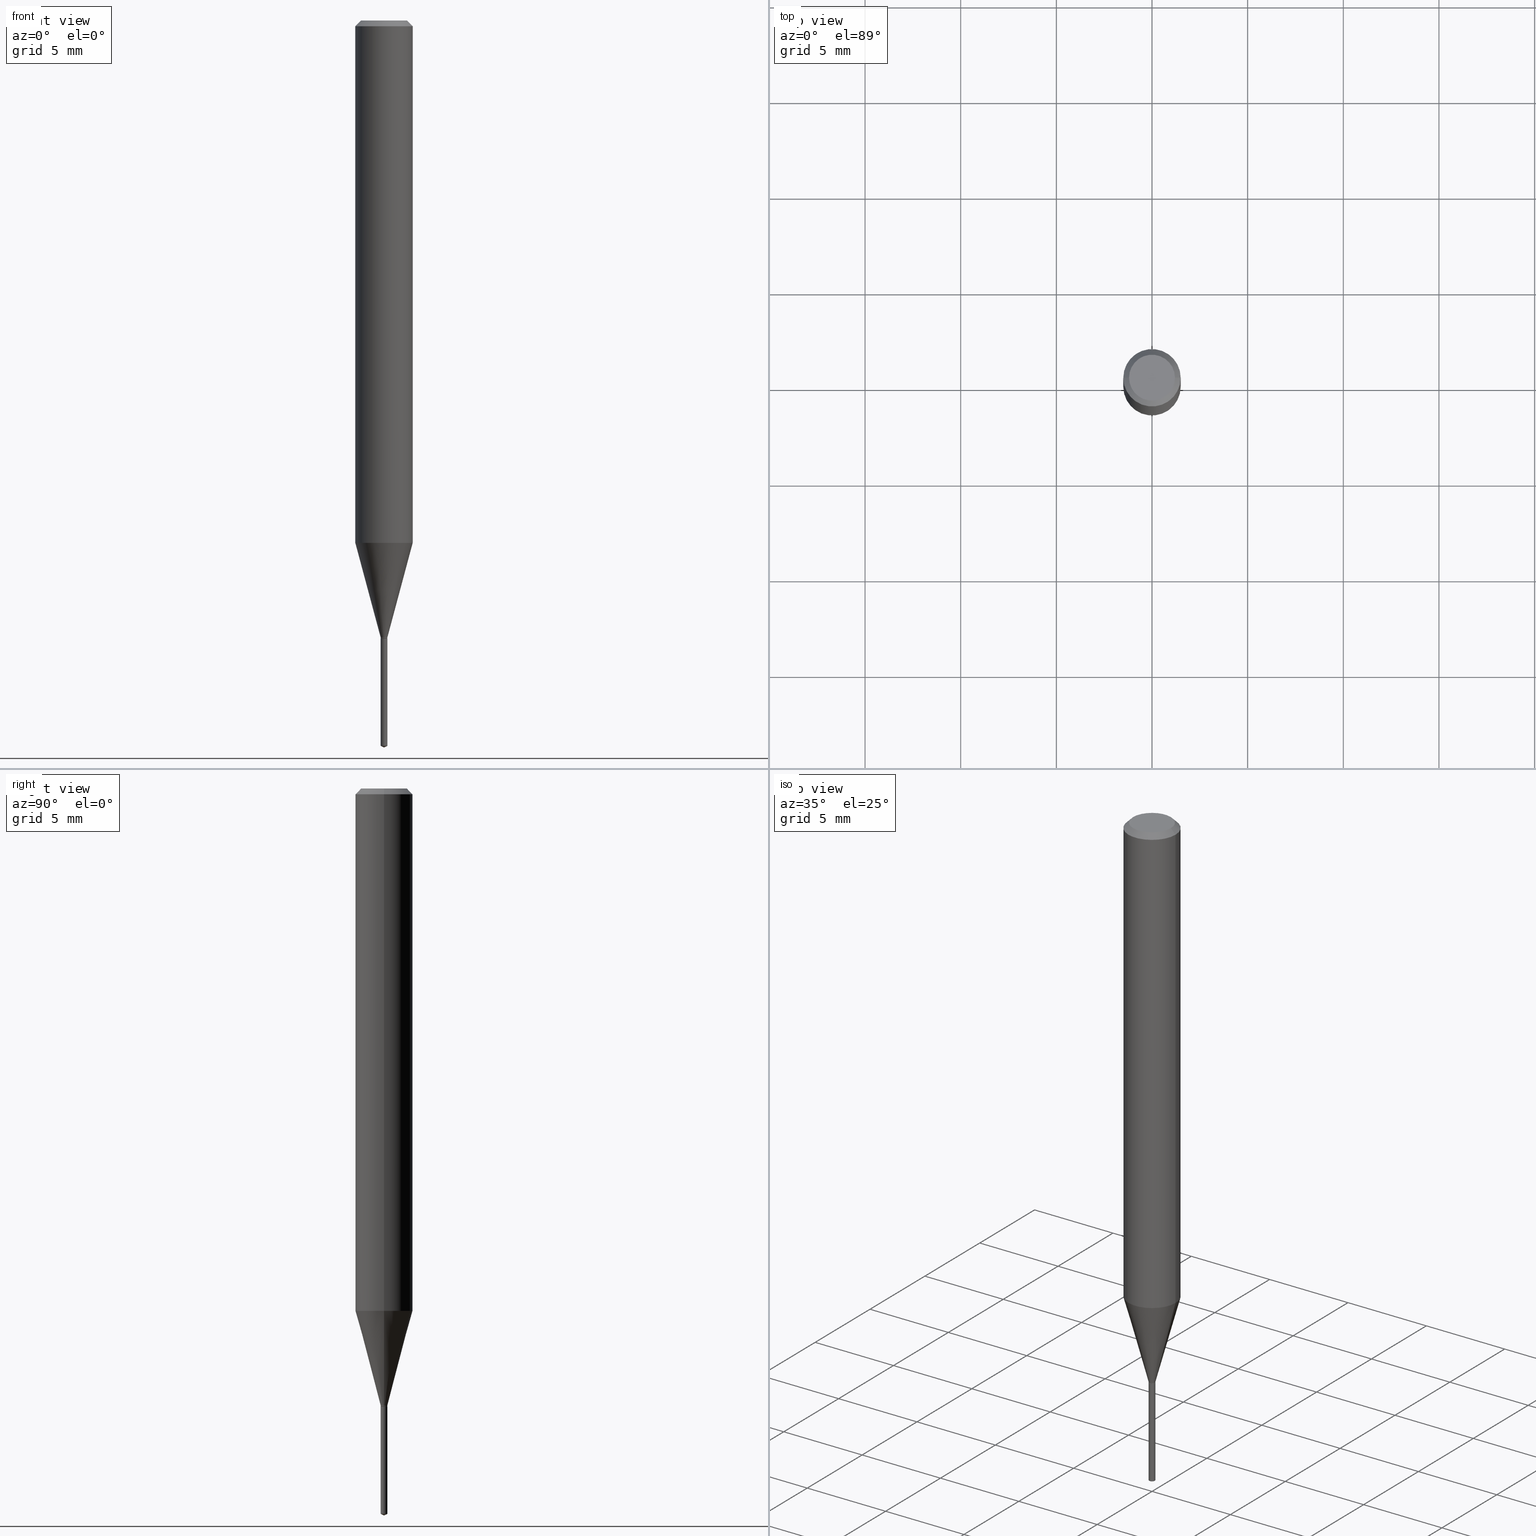
[diagram: canonical four-view strip — front | top / right | iso, engineering-drawing reading convention]
A machine part, canonical four-view strip (front | top / right | iso — engineering-drawing reading convention). The complete STEP part file that produces these views, byte-faithful:
ISO-10303-21;
HEADER;
FILE_DESCRIPTION (( 'STEP AP203' ),
    '1' );
FILE_NAME ('08076.STEP',
    '2024-04-24T10:43:33',
    ( '' ),
    ( '' ),
    'SwSTEP 2.0',
    'SolidWorks 2023',
    '' );
FILE_SCHEMA (( 'CONFIG_CONTROL_DESIGN' ));
ENDSEC;

DATA;
#1 = AXIS2_PLACEMENT_3D ( 'NONE', #345, #281, #490 ) ;
#2 = LINE ( 'NONE', #309, #386 ) ;
#3 = ORIENTED_EDGE ( 'NONE', *, *, #21, .T. ) ;
#4 = AXIS2_PLACEMENT_3D ( 'NONE', #462, #328, #179 ) ;
#5 = CARTESIAN_POINT ( 'NONE',  ( 0.006899999999999999883, -4.480967150271292854E-15, -1.269600000000000062 ) ) ;
#6 = ORIENTED_EDGE ( 'NONE', *, *, #144, .F. ) ;
#7 = CARTESIAN_POINT ( 'NONE',  ( 3.104767196332649259E-29, -4.432784707795257778E-15, -1.269600000000000062 ) ) ;
#8 = DIRECTION ( 'NONE',  ( -2.445468806185136597E-29, 3.491481338843145583E-15, 1.000000000000000000 ) ) ;
#9 = EDGE_CURVE ( 'NONE', #33, #138, #116, .T. ) ;
#10 = CARTESIAN_POINT ( 'NONE',  ( 3.109902680825638129E-29, -4.440116818606828093E-15, -1.271700000000000053 ) ) ;
#11 = ORIENTED_EDGE ( 'NONE', *, *, #83, .F. ) ;
#12 = AXIS2_PLACEMENT_3D ( 'NONE', #101, #399, #145 ) ;
#13 = LOCAL_TIME ( 6, 43, 33.00000000000000000, #339 ) ;
#14 = LINE ( 'NONE', #316, #51 ) ;
#15 = FACE_OUTER_BOUND ( 'NONE', #111, .T. ) ;
#16 = LINE ( 'NONE', #252, #294 ) ;
#17 = ADVANCED_FACE ( 'NONE', ( #324 ), #465, .F. ) ;
#18 = ORIENTED_EDGE ( 'NONE', *, *, #427, .T. ) ;
#19 = DIRECTION ( 'NONE',  ( 1.000000000000000000, -6.982962677686264344E-15, 0.000000000000000000 ) ) ;
#20 = APPROVAL_PERSON_ORGANIZATION ( #331, #181, #191 ) ;
#21 = EDGE_CURVE ( 'NONE', #178, #351, #182, .T. ) ;
#22 = CALENDAR_DATE ( 2024, 24, 4 ) ;
#23 = DIRECTION ( 'NONE',  ( 1.000000000000000000, -6.982962677686234367E-15, 0.000000000000000000 ) ) ;
#24 = PERSON_AND_ORGANIZATION ( #65, #372 ) ;
#25 = DIRECTION ( 'NONE',  ( -0.7071067811866199593, 7.493145998870616062E-15, 0.7071067811864750752 ) ) ;
#26 = AXIS2_PLACEMENT_3D ( 'NONE', #291, #463, #435 ) ;
#27 = AXIS2_PLACEMENT_3D ( 'NONE', #263, #358, #404 ) ;
#28 = ORIENTED_EDGE ( 'NONE', *, *, #66, .F. ) ;
#29 =( NAMED_UNIT ( * ) SI_UNIT ( $, .STERADIAN. ) SOLID_ANGLE_UNIT ( ) );
#30 = CC_DESIGN_PERSON_AND_ORGANIZATION_ASSIGNMENT ( #296, #336, ( #406 ) ) ;
#31 = EDGE_CURVE ( 'NONE', #312, #271, #158, .T. ) ;
#32 = COORDINATED_UNIVERSAL_TIME_OFFSET ( 5, 0, .BEHIND. ) ;
#33 = VERTEX_POINT ( 'NONE', #180 ) ;
#34 = CARTESIAN_POINT ( 'NONE',  ( -0.006899999999999999883, -4.386550444098885937E-15, -1.271200000000000108 ) ) ;
#35 = ORIENTED_EDGE ( 'NONE', *, *, #242, .F. ) ;
#36 = CIRCLE ( 'NONE', #205, 0.05904999999999999832 ) ;
#37 = APPROVAL ( #251, 'UNSPECIFIED' ) ;
#38 = ADVANCED_FACE ( 'NONE', ( #15 ), #62, .T. ) ;
#39 = DIRECTION ( 'NONE',  ( 0.2588190451025213501, 1.565188264969621968E-15, 0.9659258262890682012 ) ) ;
#40 = DIRECTION ( 'NONE',  ( 6.982962677686265922E-15, 1.000000000000000000, -3.491506729089142552E-15 ) ) ;
#41 = DIRECTION ( 'NONE',  ( -2.445468806185136597E-29, 3.491481338843145583E-15, 1.000000000000000000 ) ) ;
#42 = ORIENTED_EDGE ( 'NONE', *, *, #433, .T. ) ;
#43 = CARTESIAN_POINT ( 'NONE',  ( 3.650793607645767893E-29, -5.212376925963141053E-15, -1.492882477158730348 ) ) ;
#44 = EDGE_CURVE ( 'NONE', #168, #351, #393, .T. ) ;
#45 = ORIENTED_EDGE ( 'NONE', *, *, #321, .F. ) ;
#46 = CARTESIAN_POINT ( 'NONE',  ( 8.265746106709734507E-48, -1.180129479067563789E-33, -3.380025165646692144E-19 ) ) ;
#47 = DIRECTION ( 'NONE',  ( 1.000000000000000000, -6.982962677686303787E-15, 0.000000000000000000 ) ) ;
#48 = DIRECTION ( 'NONE',  ( -1.000000000000000000, 6.982962677686266711E-15, 0.000000000000000000 ) ) ;
#49 = CARTESIAN_POINT ( 'NONE',  ( 2.888098660104663766E-31, -4.123439461173779647E-17, -0.01181000000000007044 ) ) ;
#50 = VECTOR ( 'NONE', #39, 39.37007874015747433 ) ;
#51 = VECTOR ( 'NONE', #177, 39.37007874015748143 ) ;
#52 = CC_DESIGN_PERSON_AND_ORGANIZATION_ASSIGNMENT ( #367, #485, ( #160 ) ) ;
#53 = EDGE_CURVE ( 'NONE', #398, #156, #451, .T. ) ;
#54 = CARTESIAN_POINT ( 'NONE',  ( -0.05905000000000013710, -3.333674605453837154E-15, -1.074973550385283083 ) ) ;
#55 = ORIENTED_EDGE ( 'NONE', *, *, #144, .T. ) ;
#56 = DIRECTION ( 'NONE',  ( -2.445451076271118643E-29, 3.491506729089142552E-15, 1.000000000000000000 ) ) ;
#57 = DIRECTION ( 'NONE',  ( -2.445451076271118923E-29, 3.491506729089142946E-15, 1.000000000000000000 ) ) ;
#58 = ORIENTED_EDGE ( 'NONE', *, *, #384, .F. ) ;
#59 = DIRECTION ( 'NONE',  ( -2.445468806185136597E-29, 3.491481338843145583E-15, 1.000000000000000000 ) ) ;
#60 = APPLICATION_CONTEXT ( 'configuration controlled 3d designs of mechanical parts and assemblies' ) ;
#61 = DATE_AND_TIME ( #69, #247 ) ;
#62 = CONICAL_SURFACE ( 'NONE', #132, 84.42940631927420725, 1.134464013796315340 ) ;
#63 = PRODUCT_DEFINITION_FORMATION_WITH_SPECIFIED_SOURCE ( 'ANY', '', #361, .NOT_KNOWN. ) ;
#64 = CARTESIAN_POINT ( 'NONE',  ( 0.04724000000000000421, -3.852183633974369345E-16, -3.380025165621689721E-19 ) ) ;
#65 = PERSON ( 'UNSPECIFIED', 'UNSPECIFIED', 'UNSPECIFIED', ('UNSPECIFIED'), ('UNSPECIFIED'), ('UNSPECIFIED') ) ;
#66 = EDGE_CURVE ( 'NONE', #312, #297, #173, .T. ) ;
#67 =( CONVERSION_BASED_UNIT ( 'INCH', #415 ) LENGTH_UNIT ( ) NAMED_UNIT ( #226 ) );
#68 = LINE ( 'NONE', #236, #125 ) ;
#69 = CALENDAR_DATE ( 2024, 24, 4 ) ;
#70 = VERTEX_POINT ( 'NONE', #461 ) ;
#71 = CC_DESIGN_PERSON_AND_ORGANIZATION_ASSIGNMENT ( #24, #148, ( #63 ) ) ;
#72 = AXIS2_PLACEMENT_3D ( 'NONE', #400, #57, #255 ) ;
#73 = EDGE_CURVE ( 'NONE', #156, #398, #99, .T. ) ;
#74 = ORIENTED_EDGE ( 'NONE', *, *, #306, .F. ) ;
#75 = FACE_OUTER_BOUND ( 'NONE', #444, .T. ) ;
#76 = ORIENTED_EDGE ( 'NONE', *, *, #31, .T. ) ;
#77 = CARTESIAN_POINT ( 'NONE',  ( 0.000000000000000000, 0.000000000000000000, 0.000000000000000000 ) ) ;
#78 = EDGE_CURVE ( 'NONE', #297, #245, #405, .T. ) ;
#79 = MECHANICAL_CONTEXT ( 'NONE', #60, 'mechanical' ) ;
#80 = DIRECTION ( 'NONE',  ( -2.445468806185136597E-29, 3.491481338843145583E-15, 1.000000000000000000 ) ) ;
#81 = AXIS2_PLACEMENT_3D ( 'NONE', #107, #369, #295 ) ;
#82 = DIRECTION ( 'NONE',  ( 1.000000000000000000, -6.982962677686266711E-15, 4.876176775795936353E-29 ) ) ;
#83 = EDGE_CURVE ( 'NONE', #33, #166, #349, .T. ) ;
#84 = FACE_OUTER_BOUND ( 'NONE', #192, .T. ) ;
#85 = ORIENTED_EDGE ( 'NONE', *, *, #335, .F. ) ;
#86 = CARTESIAN_POINT ( 'NONE',  ( 3.109902680825638129E-29, -4.440116818606828093E-15, -1.271700000000000053 ) ) ;
#87 = CLOSED_SHELL ( 'NONE', ( #467, #264, #38, #209, #135 ) ) ;
#88 = ORIENTED_EDGE ( 'NONE', *, *, #409, .T. ) ;
#89 = LOCAL_TIME ( 6, 43, 33.00000000000000000, #232 ) ;
#90 = APPLICATION_CONTEXT ( 'configuration controlled 3d designs of mechanical parts and assemblies' ) ;
#91 = LINE ( 'NONE', #5, #50 ) ;
#92 = ORIENTED_EDGE ( 'NONE', *, *, #21, .F. ) ;
#93 = PERSON_AND_ORGANIZATION ( #65, #372 ) ;
#94 = FACE_OUTER_BOUND ( 'NONE', #140, .T. ) ;
#95 = DIRECTION ( 'NONE',  ( -6.982962677686266711E-15, -1.000000000000000000, 3.520397390770459392E-15 ) ) ;
#96 = EDGE_CURVE ( 'NONE', #70, #285, #213, .T. ) ;
#97 = CYLINDRICAL_SURFACE ( 'NONE', #12, 0.05905000000000006771 ) ;
#98 = DIRECTION ( 'NONE',  ( -2.445468806185136597E-29, 3.491481338843145583E-15, 1.000000000000000000 ) ) ;
#99 = CIRCLE ( 'NONE', #147, 0.006899999999999999883 ) ;
#100 = ORIENTED_EDGE ( 'NONE', *, *, #171, .F. ) ;
#101 = CARTESIAN_POINT ( 'NONE',  ( 0.000000000000000000, 0.000000000000000000, 0.000000000000000000 ) ) ;
#102 = ORIENTED_EDGE ( 'NONE', *, *, #242, .T. ) ;
#103 = CARTESIAN_POINT ( 'NONE',  ( 0.05905000000000013710, -4.165594037037551961E-15, -1.074973550385283083 ) ) ;
#104 = PLANE ( 'NONE',  #4 ) ;
#105 = SHAPE_DEFINITION_REPRESENTATION ( #256, #360 ) ;
#106 = CONICAL_SURFACE ( 'NONE', #174, 84.42940631927420725, 1.134464013796315340 ) ;
#107 = CARTESIAN_POINT ( 'NONE',  ( 3.109902680825638129E-29, -4.440116818606828093E-15, -1.271700000000000053 ) ) ;
#108 = ORIENTED_EDGE ( 'NONE', *, *, #321, .T. ) ;
#109 = CC_DESIGN_DATE_AND_TIME_ASSIGNMENT ( #61, #376, ( #160 ) ) ;
#110 = PERSON_AND_ORGANIZATION_ROLE ( 'design_supplier' ) ;
#111 = EDGE_LOOP ( 'NONE', ( #74, #440, #92 ) ) ;
#112 = APPLICATION_PROTOCOL_DEFINITION ( 'international standard', 'config_control_design', 1994, #60 ) ;
#113 = APPROVAL_ROLE ( '' ) ;
#114 = ORIENTED_EDGE ( 'NONE', *, *, #219, .T. ) ;
#115 = LINE ( 'NONE', #298, #439 ) ;
#116 = CIRCLE ( 'NONE', #124, 0.006399999999999998572 ) ;
#117 = CONICAL_SURFACE ( 'NONE', #434, 0.05904999999999999832, 0.7853981633974452814 ) ;
#118 = ORIENTED_EDGE ( 'NONE', *, *, #53, .F. ) ;
#119 = CARTESIAN_POINT ( 'NONE',  ( 3.109902680825638129E-29, -4.440116818606828093E-15, -1.271700000000000053 ) ) ;
#120 = CC_DESIGN_PERSON_AND_ORGANIZATION_ASSIGNMENT ( #401, #363, ( #361 ) ) ;
#121 = EDGE_CURVE ( 'NONE', #351, #178, #488, .T. ) ;
#122 = CIRCLE ( 'NONE', #229, 0.04724000000000000421 ) ;
#123 = FACE_OUTER_BOUND ( 'NONE', #248, .T. ) ;
#124 = AXIS2_PLACEMENT_3D ( 'NONE', #220, #8, #47 ) ;
#125 = VECTOR ( 'NONE', #228, 39.37007874015748143 ) ;
#126 = DIRECTION ( 'NONE',  ( 1.000000000000000000, -6.982962677686264344E-15, 0.000000000000000000 ) ) ;
#127 = EDGE_LOOP ( 'NONE', ( #340, #88, #114, #250 ) ) ;
#128 = PRODUCT_RELATED_PRODUCT_CATEGORY ( 'detail', '', ( #361 ) ) ;
#129 = EDGE_CURVE ( 'NONE', #398, #312, #91, .T. ) ;
#130 = CARTESIAN_POINT ( 'NONE',  ( 8.265746106709734507E-48, -1.180129479067563789E-33, -3.380025165646692144E-19 ) ) ;
#131 = ORIENTED_EDGE ( 'NONE', *, *, #151, .T. ) ;
#132 = AXIS2_PLACEMENT_3D ( 'NONE', #315, #458, #95 ) ;
#133 = CARTESIAN_POINT ( 'NONE',  ( 3.658639355209220542E-29, -5.223643217390265926E-15, -1.496099999999999985 ) ) ;
#134 = CARTESIAN_POINT ( 'NONE',  ( -0.006399999999999998572, -4.394642083518181956E-15, -1.271700000000000053 ) ) ;
#135 = ADVANCED_FACE ( 'NONE', ( #123 ), #314, .F. ) ;
#136 = CARTESIAN_POINT ( 'NONE',  ( 0.05905000000000006771, -4.123439461173745257E-16, 2.879382386107503723E-30 ) ) ;
#137 = DIRECTION ( 'NONE',  ( -2.445451076271118923E-29, 3.491506729089142946E-15, 1.000000000000000000 ) ) ;
#138 = VERTEX_POINT ( 'NONE', #241 ) ;
#139 = DIRECTION ( 'NONE',  ( -0.7071067811865453523, 2.468850131082234184E-15, -0.7071067811865496822 ) ) ;
#140 = EDGE_LOOP ( 'NONE', ( #416, #431, #154, #221 ) ) ;
#141 = AXIS2_PLACEMENT_3D ( 'NONE', #119, #448, #338 ) ;
#142 = LOCAL_TIME ( 6, 43, 33.00000000000000000, #262 ) ;
#143 = CARTESIAN_POINT ( 'NONE',  ( -4.818244247600414424E-17, -0.006900000000004440776, -1.271700000000000053 ) ) ;
#144 = EDGE_CURVE ( 'NONE', #271, #312, #270, .T. ) ;
#145 = DIRECTION ( 'NONE',  ( 1.000000000000000000, -6.982962677686266711E-15, 4.876176775795936353E-29 ) ) ;
#146 = APPROVAL_DATE_TIME ( #373, #150 ) ;
#147 = AXIS2_PLACEMENT_3D ( 'NONE', #357, #287, #430 ) ;
#148 = PERSON_AND_ORGANIZATION_ROLE ( 'creator' ) ;
#149 =( GEOMETRIC_REPRESENTATION_CONTEXT ( 3 ) GLOBAL_UNCERTAINTY_ASSIGNED_CONTEXT ( ( #432 ) ) GLOBAL_UNIT_ASSIGNED_CONTEXT ( ( #67, #341, #29 ) ) REPRESENTATION_CONTEXT ( 'NONE', 'WORKASPACE' ) );
#150 = APPROVAL ( #407, 'UNSPECIFIED' ) ;
#151 = EDGE_CURVE ( 'NONE', #377, #337, #163, .T. ) ;
#152 = DATE_AND_TIME ( #188, #89 ) ;
#153 = ORIENTED_EDGE ( 'NONE', *, *, #474, .T. ) ;
#154 = ORIENTED_EDGE ( 'NONE', *, *, #83, .T. ) ;
#155 = PERSON_AND_ORGANIZATION ( #65, #372 ) ;
#156 = VERTEX_POINT ( 'NONE', #278 ) ;
#157 = CARTESIAN_POINT ( 'NONE',  ( 0.000000000000000000, 0.000000000000000000, 0.000000000000000000 ) ) ;
#158 = CIRCLE ( 'NONE', #276, 0.05905000000000013710 ) ;
#159 = CONICAL_SURFACE ( 'NONE', #198, 0.006899999999999999883, 0.2617993877991500740 ) ;
#160 = PRODUCT_DEFINITION ( 'UNKNOWN', '', #63, #327 ) ;
#161 = ADVANCED_FACE ( 'NONE', ( #417 ), #210, .T. ) ;
#162 = FACE_OUTER_BOUND ( 'NONE', #197, .T. ) ;
#163 = CIRCLE ( 'NONE', #230, 0.04724000000000000421 ) ;
#164 = CARTESIAN_POINT ( 'NONE',  ( 3.109902680825638129E-29, -4.440116818606828093E-15, -1.271700000000000053 ) ) ;
#165 = CC_DESIGN_APPROVAL ( #37, ( #160 ) ) ;
#166 = VERTEX_POINT ( 'NONE', #455 ) ;
#167 = DIRECTION ( 'NONE',  ( 2.445451076271118923E-29, -3.491506729089142552E-15, -1.000000000000000000 ) ) ;
#168 = VERTEX_POINT ( 'NONE', #199 ) ;
#169 = DIRECTION ( 'NONE',  ( -2.445468806185136597E-29, 3.491481338843145583E-15, 1.000000000000000000 ) ) ;
#170 = ORIENTED_EDGE ( 'NONE', *, *, #78, .F. ) ;
#171 = EDGE_CURVE ( 'NONE', #337, #377, #122, .T. ) ;
#172 = DIRECTION ( 'NONE',  ( 1.000000000000000000, -6.982962677686266711E-15, 4.876185090822587894E-29 ) ) ;
#173 = LINE ( 'NONE', #136, #223 ) ;
#174 = AXIS2_PLACEMENT_3D ( 'NONE', #288, #137, #325 ) ;
#175 = LINE ( 'NONE', #218, #231 ) ;
#176 = EDGE_LOOP ( 'NONE', ( #208, #342, #447 ) ) ;
#177 = DIRECTION ( 'NONE',  ( -2.445451076271118643E-29, 3.491506729089142552E-15, 1.000000000000000000 ) ) ;
#178 = VERTEX_POINT ( 'NONE', #354 ) ;
#179 = DIRECTION ( 'NONE',  ( -1.000000000000000000, 6.982962677686265922E-15, -4.876176775795935793E-29 ) ) ;
#180 = CARTESIAN_POINT ( 'NONE',  ( 0.006399999999999998572, -4.484807779744020951E-15, -1.271700000000000053 ) ) ;
#181 = APPROVAL ( #224, 'UNSPECIFIED' ) ;
#182 = CIRCLE ( 'NONE', #72, 0.006899999999999999883 ) ;
#183 = CIRCLE ( 'NONE', #81, 0.006899999999999999883 ) ;
#184 = APPLICATION_PROTOCOL_DEFINITION ( 'international standard', 'config_control_design', 1994, #90 ) ;
#185 = DIRECTION ( 'NONE',  ( -2.445468806185136597E-29, 3.491481338843145583E-15, 1.000000000000000000 ) ) ;
#186 = ORIENTED_EDGE ( 'NONE', *, *, #237, .F. ) ;
#187 = ADVANCED_FACE ( 'NONE', ( #162 ), #382, .T. ) ;
#188 = CALENDAR_DATE ( 2024, 24, 4 ) ;
#189 = VECTOR ( 'NONE', #442, 39.37007874015748143 ) ;
#190 = LINE ( 'NONE', #272, #479 ) ;
#191 = APPROVAL_ROLE ( '' ) ;
#192 = EDGE_LOOP ( 'NONE', ( #195, #422, #385, #301 ) ) ;
#193 = CYLINDRICAL_SURFACE ( 'NONE', #381, 0.006899999999999999883 ) ;
#194 = PERSON_AND_ORGANIZATION ( #65, #372 ) ;
#195 = ORIENTED_EDGE ( 'NONE', *, *, #53, .T. ) ;
#196 = DIRECTION ( 'NONE',  ( 1.000000000000000000, -6.982962677686303787E-15, 0.000000000000000000 ) ) ;
#197 = EDGE_LOOP ( 'NONE', ( #476, #55, #238, #45 ) ) ;
#198 = AXIS2_PLACEMENT_3D ( 'NONE', #464, #366, #23 ) ;
#199 = CARTESIAN_POINT ( 'NONE',  ( 3.658639355209220542E-29, -5.223643217390265926E-15, -1.496099999999999985 ) ) ;
#200 = CARTESIAN_POINT ( 'NONE',  ( 0.006399999999999998572, -4.484807779744020951E-15, -1.271700000000000053 ) ) ;
#201 = EDGE_CURVE ( 'NONE', #166, #482, #239, .T. ) ;
#202 = AXIS2_PLACEMENT_3D ( 'NONE', #421, #41, #418 ) ;
#203 = AXIS2_PLACEMENT_3D ( 'NONE', #164, #387, #389 ) ;
#204 = CARTESIAN_POINT ( 'NONE',  ( 0.000000000000000000, 0.000000000000000000, 0.000000000000000000 ) ) ;
#205 = AXIS2_PLACEMENT_3D ( 'NONE', #259, #59, #356 ) ;
#206 = ORIENTED_EDGE ( 'NONE', *, *, #96, .F. ) ;
#207 = DIRECTION ( 'NONE',  ( -2.445468806185136597E-29, 3.491481338843145583E-15, 1.000000000000000000 ) ) ;
#208 = ORIENTED_EDGE ( 'NONE', *, *, #44, .F. ) ;
#209 = ADVANCED_FACE ( 'NONE', ( #243 ), #383, .T. ) ;
#210 = CYLINDRICAL_SURFACE ( 'NONE', #202, 0.006899999999999999883 ) ;
#211 = CARTESIAN_POINT ( 'NONE',  ( 3.104767196332649259E-29, -4.432784707795257778E-15, -1.269600000000000062 ) ) ;
#212 = CARTESIAN_POINT ( 'NONE',  ( 2.888098660104663766E-31, -4.123439461173779647E-17, -0.01181000000000007044 ) ) ;
#213 = CIRCLE ( 'NONE', #203, 0.006899999999999999883 ) ;
#214 = DIRECTION ( 'NONE',  ( 1.000000000000000000, -6.982962677686234367E-15, 0.000000000000000000 ) ) ;
#215 = AXIS2_PLACEMENT_3D ( 'NONE', #157, #425, #419 ) ;
#216 = CARTESIAN_POINT ( 'NONE',  ( 0.05904999999999999832, -4.535783407291118600E-16, -0.01181000000000007044 ) ) ;
#217 = ORIENTED_EDGE ( 'NONE', *, *, #151, .F. ) ;
#218 = CARTESIAN_POINT ( 'NONE',  ( -4.818244247600414424E-17, -0.006900000000004440776, -1.271700000000000053 ) ) ;
#219 = EDGE_CURVE ( 'NONE', #166, #398, #2, .T. ) ;
#220 = CARTESIAN_POINT ( 'NONE',  ( 3.109902680825638129E-29, -4.440116818606828093E-15, -1.271700000000000053 ) ) ;
#221 = ORIENTED_EDGE ( 'NONE', *, *, #409, .F. ) ;
#222 = DIRECTION ( 'NONE',  ( 2.445468806185136597E-29, -3.491481338843145583E-15, -1.000000000000000000 ) ) ;
#223 = VECTOR ( 'NONE', #319, 39.37007874015748143 ) ;
#224 = APPROVAL_STATUS ( 'not_yet_approved' ) ;
#225 = FACE_OUTER_BOUND ( 'NONE', #353, .T. ) ;
#226 = DIMENSIONAL_EXPONENTS ( 1.000000000000000000, 0.000000000000000000, 0.000000000000000000, 0.000000000000000000, 0.000000000000000000, 0.000000000000000000, 0.000000000000000000 ) ;
#227 = ADVANCED_FACE ( 'NONE', ( #84 ), #254, .T. ) ;
#228 = DIRECTION ( 'NONE',  ( -2.445468806185136877E-29, 3.491481338843145188E-15, 1.000000000000000000 ) ) ;
#229 = AXIS2_PLACEMENT_3D ( 'NONE', #130, #80, #457 ) ;
#230 = AXIS2_PLACEMENT_3D ( 'NONE', #46, #279, #172 ) ;
#231 = VECTOR ( 'NONE', #56, 39.37007874015748143 ) ;
#232 = COORDINATED_UNIVERSAL_TIME_OFFSET ( 5, 0, .BEHIND. ) ;
#233 = ORIENTED_EDGE ( 'NONE', *, *, #237, .T. ) ;
#234 = COORDINATED_UNIVERSAL_TIME_OFFSET ( 5, 0, .BEHIND. ) ;
#235 = EDGE_LOOP ( 'NONE', ( #379, #411 ) ) ;
#236 = CARTESIAN_POINT ( 'NONE',  ( -0.05905000000000006771, 4.195754854663396409E-16, -2.904631170795525045E-30 ) ) ;
#237 = EDGE_CURVE ( 'NONE', #351, #285, #175, .T. ) ;
#238 = ORIENTED_EDGE ( 'NONE', *, *, #66, .T. ) ;
#239 = CIRCLE ( 'NONE', #1, 0.006899999999999999883 ) ;
#240 = CIRCLE ( 'NONE', #469, 0.006899999999999999883 ) ;
#241 = CARTESIAN_POINT ( 'NONE',  ( -0.006399999999999998572, -4.391992856344071544E-15, -1.271700000000000053 ) ) ;
#242 = EDGE_CURVE ( 'NONE', #377, #245, #437, .T. ) ;
#243 = FACE_OUTER_BOUND ( 'NONE', #374, .T. ) ;
#244 = DIRECTION ( 'NONE',  ( 0.7071067811866199593, -2.468850131083015945E-15, 0.7071067811864750752 ) ) ;
#245 = VERTEX_POINT ( 'NONE', #292 ) ;
#246 = DIRECTION ( 'NONE',  ( -2.445468806185136597E-29, 3.491481338843145583E-15, 1.000000000000000000 ) ) ;
#247 = LOCAL_TIME ( 6, 43, 33.00000000000000000, #32 ) ;
#248 = EDGE_LOOP ( 'NONE', ( #42, #322 ) ) ;
#249 = DIRECTION ( 'NONE',  ( 1.000000000000000000, -6.982962677686266711E-15, 0.000000000000000000 ) ) ;
#250 = ORIENTED_EDGE ( 'NONE', *, *, #73, .F. ) ;
#251 = APPROVAL_STATUS ( 'not_yet_approved' ) ;
#252 = CARTESIAN_POINT ( 'NONE',  ( 3.658684844895993065E-29, -5.223578639838595725E-15, -1.496099999999999985 ) ) ;
#253 = ORIENTED_EDGE ( 'NONE', *, *, #335, .T. ) ;
#254 = CONICAL_SURFACE ( 'NONE', #452, 0.006899999999999999883, 0.2617993877991500740 ) ;
#255 = DIRECTION ( 'NONE',  ( -6.982962677686265922E-15, -1.000000000000000000, 0.000000000000000000 ) ) ;
#256 = PRODUCT_DEFINITION_SHAPE ( 'NONE', 'NONE',  #160 ) ;
#257 = EDGE_LOOP ( 'NONE', ( #332, #310, #118, #414 ) ) ;
#258 = ADVANCED_FACE ( 'NONE', ( #286 ), #104, .F. ) ;
#259 = CARTESIAN_POINT ( 'NONE',  ( 2.888098660104663766E-31, -4.123439461173779647E-17, -0.01181000000000007044 ) ) ;
#260 = ORIENTED_EDGE ( 'NONE', *, *, #201, .F. ) ;
#261 = FACE_OUTER_BOUND ( 'NONE', #390, .T. ) ;
#262 = COORDINATED_UNIVERSAL_TIME_OFFSET ( 5, 0, .BEHIND. ) ;
#263 = CARTESIAN_POINT ( 'NONE',  ( 3.109902680825638129E-29, -4.440116818606828093E-15, -1.271700000000000053 ) ) ;
#264 = ADVANCED_FACE ( 'NONE', ( #471 ), #106, .T. ) ;
#265 = CONICAL_SURFACE ( 'NONE', #27, 0.006399999999999998572, 0.7853981633975507526 ) ;
#266 = DIRECTION ( 'NONE',  ( -2.445451076271118923E-29, 3.491506729089142946E-15, 1.000000000000000000 ) ) ;
#267 = CARTESIAN_POINT ( 'NONE',  ( -0.006899999999999999883, 4.902744876744691200E-17, -3.394065212275885310E-31 ) ) ;
#268 = ORIENTED_EDGE ( 'NONE', *, *, #129, .T. ) ;
#269 = ADVANCED_FACE ( 'NONE', ( #470 ), #97, .T. ) ;
#270 = CIRCLE ( 'NONE', #478, 0.05905000000000013710 ) ;
#271 = VERTEX_POINT ( 'NONE', #54 ) ;
#272 = CARTESIAN_POINT ( 'NONE',  ( -0.006899999999999999883, -4.383757259027810743E-15, -1.269600000000000062 ) ) ;
#273 = ORIENTED_EDGE ( 'NONE', *, *, #350, .T. ) ;
#274 = DIRECTION ( 'NONE',  ( -2.445468806185136597E-29, 3.491481338843145583E-15, 1.000000000000000000 ) ) ;
#275 = DIRECTION ( 'NONE',  ( -2.445468806185136597E-29, 3.491481338843145583E-15, 1.000000000000000000 ) ) ;
#276 = AXIS2_PLACEMENT_3D ( 'NONE', #362, #98, #19 ) ;
#277 = CONICAL_SURFACE ( 'NONE', #489, 0.05904999999999999832, 0.7853981633974452814 ) ;
#278 = CARTESIAN_POINT ( 'NONE',  ( -0.006899999999999999883, -4.386550444098885937E-15, -1.269600000000000062 ) ) ;
#279 = DIRECTION ( 'NONE',  ( -2.445468806185136597E-29, 3.491481338843145583E-15, 1.000000000000000000 ) ) ;
#280 = EDGE_LOOP ( 'NONE', ( #76, #18, #170, #28 ) ) ;
#281 = DIRECTION ( 'NONE',  ( -2.445468806185136597E-29, 3.491481338843145583E-15, 1.000000000000000000 ) ) ;
#282 = ORIENTED_EDGE ( 'NONE', *, *, #73, .T. ) ;
#283 = CARTESIAN_POINT ( 'NONE',  ( 2.628814284941295656E-29, -3.753250090920177830E-15, -1.074973550385283083 ) ) ;
#284 = VECTOR ( 'NONE', #139, 39.37007874015748143 ) ;
#285 = VERTEX_POINT ( 'NONE', #143 ) ;
#286 = FACE_OUTER_BOUND ( 'NONE', #388, .T. ) ;
#287 = DIRECTION ( 'NONE',  ( -2.445468806185136597E-29, 3.491481338843145583E-15, 1.000000000000000000 ) ) ;
#288 = CARTESIAN_POINT ( 'NONE',  ( -9.261893952565592859E-28, 1.322372839174148049E-13, 37.87397874015748300 ) ) ;
#289 = ORIENTED_EDGE ( 'NONE', *, *, #171, .T. ) ;
#290 = DIRECTION ( 'NONE',  ( 1.000000000000000000, -6.982962677686234367E-15, 0.000000000000000000 ) ) ;
#291 = CARTESIAN_POINT ( 'NONE',  ( 3.109902680825638129E-29, -4.440116818606828093E-15, -1.271700000000000053 ) ) ;
#292 = CARTESIAN_POINT ( 'NONE',  ( -0.05904999999999999832, -1.477666757299617300E-15, -0.01181000000000007044 ) ) ;
#293 = CARTESIAN_POINT ( 'NONE',  ( -0.04724000000000000421, 3.504923541997677355E-16, -3.380025165670481712E-19 ) ) ;
#294 = VECTOR ( 'NONE', #392, 39.37007874015748854 ) ;
#295 = DIRECTION ( 'NONE',  ( -6.982962677686265922E-15, -1.000000000000000000, 0.000000000000000000 ) ) ;
#296 = PERSON_AND_ORGANIZATION ( #65, #372 ) ;
#297 = VERTEX_POINT ( 'NONE', #216 ) ;
#298 = CARTESIAN_POINT ( 'NONE',  ( 0.05904999999999999832, -4.463468013801466955E-16, -0.01181000000000007044 ) ) ;
#299 = ADVANCED_FACE ( 'NONE', ( #94 ), #265, .T. ) ;
#300 = APPROVAL_DATE_TIME ( #475, #37 ) ;
#301 = ORIENTED_EDGE ( 'NONE', *, *, #129, .F. ) ;
#302 = AXIS2_PLACEMENT_3D ( 'NONE', #86, #352, #346 ) ;
#303 = CALENDAR_DATE ( 2024, 24, 4 ) ;
#304 = ORIENTED_EDGE ( 'NONE', *, *, #433, .F. ) ;
#305 = CARTESIAN_POINT ( 'NONE',  ( -4.818244247599872083E-17, -0.006900000000005211860, -1.492882477158730348 ) ) ;
#306 = EDGE_CURVE ( 'NONE', #168, #178, #16, .T. ) ;
#307 = CLOSED_SHELL ( 'NONE', ( #403, #313, #269, #227, #449, #161, #344, #187, #329, #258, #17, #299 ) ) ;
#308 = AXIS2_PLACEMENT_3D ( 'NONE', #77, #412, #330 ) ;
#309 = CARTESIAN_POINT ( 'NONE',  ( 0.006899999999999999883, -4.818244247603524262E-17, 3.364561975299196072E-31 ) ) ;
#310 = ORIENTED_EDGE ( 'NONE', *, *, #484, .T. ) ;
#311 = DIRECTION ( 'NONE',  ( -6.982962677686265922E-15, -1.000000000000000000, 0.000000000000000000 ) ) ;
#312 = VERTEX_POINT ( 'NONE', #103 ) ;
#313 = ADVANCED_FACE ( 'NONE', ( #323 ), #117, .T. ) ;
#314 = PLANE ( 'NONE',  #371 ) ;
#315 = CARTESIAN_POINT ( 'NONE',  ( -9.261893952565592859E-28, 1.322372839174148049E-13, 37.87397874015748300 ) ) ;
#316 = CARTESIAN_POINT ( 'NONE',  ( 4.902744876747800421E-17, 0.006899999999995559859, -1.271700000000000053 ) ) ;
#317 = CONICAL_SURFACE ( 'NONE', #141, 0.006399999999999998572, 0.7853981633975507526 ) ;
#318 = CC_DESIGN_SECURITY_CLASSIFICATION ( #406, ( #63 ) ) ;
#319 = DIRECTION ( 'NONE',  ( -2.445468806185136877E-29, 3.491481338843145188E-15, 1.000000000000000000 ) ) ;
#320 = CARTESIAN_POINT ( 'NONE',  ( 2.888098660104663766E-31, -4.123439461173779647E-17, -0.01181000000000007044 ) ) ;
#321 = EDGE_CURVE ( 'NONE', #245, #297, #36, .T. ) ;
#322 = ORIENTED_EDGE ( 'NONE', *, *, #96, .T. ) ;
#323 = FACE_OUTER_BOUND ( 'NONE', #441, .T. ) ;
#324 = FACE_OUTER_BOUND ( 'NONE', #235, .T. ) ;
#325 = DIRECTION ( 'NONE',  ( -6.982962677686266711E-15, -1.000000000000000000, 3.520397390770459392E-15 ) ) ;
#326 = APPROVAL_PERSON_ORGANIZATION ( #93, #37, #391 ) ;
#327 = DESIGN_CONTEXT ( 'detailed design', #90, 'design' ) ;
#328 = DIRECTION ( 'NONE',  ( 2.438088387897960049E-29, -3.491481338843145188E-15, -1.000000000000000000 ) ) ;
#329 = ADVANCED_FACE ( 'NONE', ( #261 ), #277, .T. ) ;
#330 = DIRECTION ( 'NONE',  ( 1.000000000000000000, -6.982962677686267499E-15, 4.876176775795936353E-29 ) ) ;
#331 = PERSON_AND_ORGANIZATION ( #65, #372 ) ;
#332 = ORIENTED_EDGE ( 'NONE', *, *, #201, .T. ) ;
#333 = CARTESIAN_POINT ( 'NONE',  ( 3.109902680825638129E-29, -4.440116818606828093E-15, -1.271700000000000053 ) ) ;
#334 = DATE_TIME_ROLE ( 'classification_date' ) ;
#335 = EDGE_CURVE ( 'NONE', #178, #70, #14, .T. ) ;
#336 = PERSON_AND_ORGANIZATION_ROLE ( 'classification_officer' ) ;
#337 = VERTEX_POINT ( 'NONE', #64 ) ;
#338 = DIRECTION ( 'NONE',  ( 1.000000000000000000, -6.982962677686303787E-15, 0.000000000000000000 ) ) ;
#339 = COORDINATED_UNIVERSAL_TIME_OFFSET ( 5, 0, .BEHIND. ) ;
#340 = ORIENTED_EDGE ( 'NONE', *, *, #484, .F. ) ;
#341 =( NAMED_UNIT ( * ) PLANE_ANGLE_UNIT ( ) SI_UNIT ( $, .RADIAN. ) );
#342 = ORIENTED_EDGE ( 'NONE', *, *, #306, .T. ) ;
#343 = CC_DESIGN_PERSON_AND_ORGANIZATION_ASSIGNMENT ( #194, #110, ( #63 ) ) ;
#344 = ADVANCED_FACE ( 'NONE', ( #225 ), #159, .T. ) ;
#345 = CARTESIAN_POINT ( 'NONE',  ( 3.108679946422545888E-29, -4.438371077937407378E-15, -1.271200000000000108 ) ) ;
#346 = DIRECTION ( 'NONE',  ( -6.982962677686265922E-15, -1.000000000000000000, 0.000000000000000000 ) ) ;
#347 = AXIS2_PLACEMENT_3D ( 'NONE', #49, #246, #249 ) ;
#348 = APPROVAL_PERSON_ORGANIZATION ( #155, #150, #113 ) ;
#349 = LINE ( 'NONE', #200, #459 ) ;
#350 = EDGE_CURVE ( 'NONE', #138, #482, #460, .T. ) ;
#351 = VERTEX_POINT ( 'NONE', #305 ) ;
#352 = DIRECTION ( 'NONE',  ( -2.445451076271118923E-29, 3.491506729089142946E-15, 1.000000000000000000 ) ) ;
#353 = EDGE_LOOP ( 'NONE', ( #58, #282, #268, #6 ) ) ;
#354 = CARTESIAN_POINT ( 'NONE',  ( 4.902744876748340914E-17, 0.006899999999994787039, -1.492882477158730348 ) ) ;
#355 = DIRECTION ( 'NONE',  ( -2.445468806185136597E-29, 3.491481338843145583E-15, 1.000000000000000000 ) ) ;
#356 = DIRECTION ( 'NONE',  ( 1.000000000000000000, -6.982962677686266711E-15, 0.000000000000000000 ) ) ;
#357 = CARTESIAN_POINT ( 'NONE',  ( 3.104767196332649259E-29, -4.432784707795257778E-15, -1.269600000000000062 ) ) ;
#358 = DIRECTION ( 'NONE',  ( -2.445468806185136597E-29, 3.491481338843145583E-15, 1.000000000000000000 ) ) ;
#359 = ORIENTED_EDGE ( 'NONE', *, *, #474, .F. ) ;
#360 = ADVANCED_BREP_SHAPE_REPRESENTATION ( '08076', ( #472, #466, #215 ), #149 ) ;
#361 = PRODUCT ( '08076', '08076', '', ( #79 ) ) ;
#362 = CARTESIAN_POINT ( 'NONE',  ( 2.628814284941295656E-29, -3.753250090920177830E-15, -1.074973550385283083 ) ) ;
#363 = PERSON_AND_ORGANIZATION_ROLE ( 'design_owner' ) ;
#364 = CC_DESIGN_APPROVAL ( #181, ( #63 ) ) ;
#365 = CALENDAR_DATE ( 2024, 24, 4 ) ;
#366 = DIRECTION ( 'NONE',  ( -2.445468806185136597E-29, 3.491481338843145583E-15, 1.000000000000000000 ) ) ;
#367 = PERSON_AND_ORGANIZATION ( #65, #372 ) ;
#368 = CYLINDRICAL_SURFACE ( 'NONE', #308, 0.006899999999999999883 ) ;
#369 = DIRECTION ( 'NONE',  ( -2.445451076271118923E-29, 3.491506729089142946E-15, 1.000000000000000000 ) ) ;
#370 = AXIS2_PLACEMENT_3D ( 'NONE', #204, #207, #82 ) ;
#371 = AXIS2_PLACEMENT_3D ( 'NONE', #10, #167, #40 ) ;
#372 = ORGANIZATION ( 'UNSPECIFIED', 'UNSPECIFIED', '' ) ;
#373 = DATE_AND_TIME ( #365, #142 ) ;
#374 = EDGE_LOOP ( 'NONE', ( #85, #3, #233, #206 ) ) ;
#375 = CARTESIAN_POINT ( 'NONE',  ( 0.006899999999999999883, -4.480967150271292854E-15, -1.269600000000000062 ) ) ;
#376 = DATE_TIME_ROLE ( 'creation_date' ) ;
#377 = VERTEX_POINT ( 'NONE', #293 ) ;
#378 = DIRECTION ( 'NONE',  ( 0.7071067811865453523, -7.319954787623248157E-15, -0.7071067811865496822 ) ) ;
#379 = ORIENTED_EDGE ( 'NONE', *, *, #9, .F. ) ;
#380 = DIRECTION ( 'NONE',  ( -0.2588190451025213501, 5.211531920934551042E-15, 0.9659258262890682012 ) ) ;
#381 = AXIS2_PLACEMENT_3D ( 'NONE', #333, #266, #408 ) ;
#382 = CYLINDRICAL_SURFACE ( 'NONE', #370, 0.05905000000000006771 ) ;
#383 = CYLINDRICAL_SURFACE ( 'NONE', #302, 0.006899999999999999883 ) ;
#384 = EDGE_CURVE ( 'NONE', #156, #271, #190, .T. ) ;
#385 = ORIENTED_EDGE ( 'NONE', *, *, #31, .F. ) ;
#386 = VECTOR ( 'NONE', #453, 39.37007874015748143 ) ;
#387 = DIRECTION ( 'NONE',  ( -2.445451076271118923E-29, 3.491506729089142946E-15, 1.000000000000000000 ) ) ;
#388 = EDGE_LOOP ( 'NONE', ( #131, #289 ) ) ;
#389 = DIRECTION ( 'NONE',  ( -6.982962677686265922E-15, -1.000000000000000000, 0.000000000000000000 ) ) ;
#390 = EDGE_LOOP ( 'NONE', ( #359, #217, #102, #108 ) ) ;
#391 = APPROVAL_ROLE ( '' ) ;
#392 = DIRECTION ( 'NONE',  ( 6.439704144417027987E-15, 0.9063077870366519351, 0.4226182617406953335 ) ) ;
#393 = LINE ( 'NONE', #133, #394 ) ;
#394 = VECTOR ( 'NONE', #428, 39.37007874015748143 ) ;
#395 = CARTESIAN_POINT ( 'NONE',  ( -0.05904999999999999832, 3.711095515056362547E-16, -0.01181000000000007044 ) ) ;
#396 = AXIS2_PLACEMENT_3D ( 'NONE', #480, #185, #196 ) ;
#397 = CC_DESIGN_APPROVAL ( #150, ( #406 ) ) ;
#398 = VERTEX_POINT ( 'NONE', #375 ) ;
#399 = DIRECTION ( 'NONE',  ( -2.445468806185136597E-29, 3.491481338843145583E-15, 1.000000000000000000 ) ) ;
#400 = CARTESIAN_POINT ( 'NONE',  ( 3.650793607645767893E-29, -5.212376925963141053E-15, -1.492882477158730348 ) ) ;
#401 = PERSON_AND_ORGANIZATION ( #65, #372 ) ;
#402 = DIRECTION ( 'NONE',  ( 2.445468806185136597E-29, -3.491481338843145583E-15, -1.000000000000000000 ) ) ;
#403 = ADVANCED_FACE ( 'NONE', ( #438 ), #317, .T. ) ;
#404 = DIRECTION ( 'NONE',  ( 1.000000000000000000, -6.982962677686303787E-15, 0.000000000000000000 ) ) ;
#405 = CIRCLE ( 'NONE', #347, 0.05904999999999999832 ) ;
#406 = SECURITY_CLASSIFICATION ( '', '', #446 ) ;
#407 = APPROVAL_STATUS ( 'not_yet_approved' ) ;
#408 = DIRECTION ( 'NONE',  ( -6.982962677686265922E-15, -1.000000000000000000, 0.000000000000000000 ) ) ;
#409 = EDGE_CURVE ( 'NONE', #482, #166, #240, .T. ) ;
#410 = CARTESIAN_POINT ( 'NONE',  ( 3.108679946422545888E-29, -4.438371077937407378E-15, -1.271200000000000108 ) ) ;
#411 = ORIENTED_EDGE ( 'NONE', *, *, #436, .F. ) ;
#412 = DIRECTION ( 'NONE',  ( -2.445468806185136597E-29, 3.491481338843145583E-15, 1.000000000000000000 ) ) ;
#413 = CIRCLE ( 'NONE', #396, 0.006399999999999998572 ) ;
#414 = ORIENTED_EDGE ( 'NONE', *, *, #219, .F. ) ;
#415 = LENGTH_MEASURE_WITH_UNIT ( LENGTH_MEASURE( 0.02539999999999999897 ), #473 );
#416 = ORIENTED_EDGE ( 'NONE', *, *, #350, .F. ) ;
#417 = FACE_OUTER_BOUND ( 'NONE', #127, .T. ) ;
#418 = DIRECTION ( 'NONE',  ( 1.000000000000000000, -6.982962677686267499E-15, 4.876176775795936353E-29 ) ) ;
#419 = DIRECTION ( 'NONE',  ( 1.000000000000000000, 0.000000000000000000, 0.000000000000000000 ) ) ;
#420 = ORIENTED_EDGE ( 'NONE', *, *, #78, .T. ) ;
#421 = CARTESIAN_POINT ( 'NONE',  ( 0.000000000000000000, 0.000000000000000000, 0.000000000000000000 ) ) ;
#422 = ORIENTED_EDGE ( 'NONE', *, *, #384, .T. ) ;
#423 = AXIS2_PLACEMENT_3D ( 'NONE', #211, #355, #214 ) ;
#424 = VECTOR ( 'NONE', #25, 39.37007874015748143 ) ;
#425 = DIRECTION ( 'NONE',  ( 0.000000000000000000, 0.000000000000000000, 1.000000000000000000 ) ) ;
#426 = DIRECTION ( 'NONE',  ( -2.445451076271118923E-29, 3.491506729089142946E-15, 1.000000000000000000 ) ) ;
#427 = EDGE_CURVE ( 'NONE', #271, #245, #68, .T. ) ;
#428 = DIRECTION ( 'NONE',  ( -6.328713451373372534E-15, -0.9063077870366488265, 0.4226182617407016062 ) ) ;
#429 = DIRECTION ( 'NONE',  ( -1.000000000000000000, 6.982962677686266711E-15, 0.000000000000000000 ) ) ;
#430 = DIRECTION ( 'NONE',  ( 1.000000000000000000, -6.982962677686234367E-15, 0.000000000000000000 ) ) ;
#431 = ORIENTED_EDGE ( 'NONE', *, *, #436, .T. ) ;
#432 = UNCERTAINTY_MEASURE_WITH_UNIT (LENGTH_MEASURE( 1.000000000000000082E-05 ), #67, 'distance_accuracy_value', 'NONE');
#433 = EDGE_CURVE ( 'NONE', #285, #70, #183, .T. ) ;
#434 = AXIS2_PLACEMENT_3D ( 'NONE', #320, #222, #48 ) ;
#435 = DIRECTION ( 'NONE',  ( 1.000000000000000000, -6.982962677686265922E-15, 4.876176775795935793E-29 ) ) ;
#436 = EDGE_CURVE ( 'NONE', #138, #33, #413, .T. ) ;
#437 = LINE ( 'NONE', #395, #284 ) ;
#438 = FACE_OUTER_BOUND ( 'NONE', #456, .T. ) ;
#439 = VECTOR ( 'NONE', #378, 39.37007874015748143 ) ;
#440 = ORIENTED_EDGE ( 'NONE', *, *, #44, .T. ) ;
#441 = EDGE_LOOP ( 'NONE', ( #100, #153, #420, #35 ) ) ;
#442 = DIRECTION ( 'NONE',  ( -2.445468806185136877E-29, 3.491481338843145188E-15, 1.000000000000000000 ) ) ;
#443 = DATE_AND_TIME ( #303, #13 ) ;
#444 = EDGE_LOOP ( 'NONE', ( #454, #253, #304, #186 ) ) ;
#445 = LOCAL_TIME ( 6, 43, 33.00000000000000000, #234 ) ;
#446 = SECURITY_CLASSIFICATION_LEVEL ( 'unclassified' ) ;
#447 = ORIENTED_EDGE ( 'NONE', *, *, #121, .F. ) ;
#448 = DIRECTION ( 'NONE',  ( -2.445468806185136597E-29, 3.491481338843145583E-15, 1.000000000000000000 ) ) ;
#449 = ADVANCED_FACE ( 'NONE', ( #487 ), #368, .T. ) ;
#450 = CC_DESIGN_DATE_AND_TIME_ASSIGNMENT ( #443, #334, ( #406 ) ) ;
#451 = CIRCLE ( 'NONE', #423, 0.006899999999999999883 ) ;
#452 = AXIS2_PLACEMENT_3D ( 'NONE', #7, #169, #290 ) ;
#453 = DIRECTION ( 'NONE',  ( -2.445468806185136877E-29, 3.491481338843145188E-15, 1.000000000000000000 ) ) ;
#454 = ORIENTED_EDGE ( 'NONE', *, *, #121, .T. ) ;
#455 = CARTESIAN_POINT ( 'NONE',  ( 0.006899999999999999883, -4.486553520413442454E-15, -1.271200000000000108 ) ) ;
#456 = EDGE_LOOP ( 'NONE', ( #486, #273, #260, #11 ) ) ;
#457 = DIRECTION ( 'NONE',  ( 1.000000000000000000, -6.982962677686266711E-15, 4.876185090822587894E-29 ) ) ;
#458 = DIRECTION ( 'NONE',  ( -2.445451076271118923E-29, 3.491506729089142946E-15, 1.000000000000000000 ) ) ;
#459 = VECTOR ( 'NONE', #244, 39.37007874015748143 ) ;
#460 = LINE ( 'NONE', #134, #424 ) ;
#461 = CARTESIAN_POINT ( 'NONE',  ( 4.902744876748343995E-17, 0.006899999999995558991, -1.271700000000000053 ) ) ;
#462 = CARTESIAN_POINT ( 'NONE',  ( 4.132873053354867254E-48, -5.900647395337818946E-34, -1.690012582823346072E-19 ) ) ;
#463 = DIRECTION ( 'NONE',  ( -2.438088387897960049E-29, 3.491481338843145188E-15, 1.000000000000000000 ) ) ;
#464 = CARTESIAN_POINT ( 'NONE',  ( 3.104767196332649259E-29, -4.432784707795257778E-15, -1.269600000000000062 ) ) ;
#465 = PLANE ( 'NONE',  #26 ) ;
#466 = MANIFOLD_SOLID_BREP ( 'Body-Move/Copy2[2]', #307 ) ;
#467 = ADVANCED_FACE ( 'NONE', ( #75 ), #193, .T. ) ;
#468 = AXIS2_PLACEMENT_3D ( 'NONE', #43, #426, #311 ) ;
#469 = AXIS2_PLACEMENT_3D ( 'NONE', #410, #274, #483 ) ;
#470 = FACE_OUTER_BOUND ( 'NONE', #280, .T. ) ;
#471 = FACE_OUTER_BOUND ( 'NONE', #176, .T. ) ;
#472 = MANIFOLD_SOLID_BREP ( 'Body-Move/Copy2[1]', #87 ) ;
#473 =( LENGTH_UNIT ( ) NAMED_UNIT ( * ) SI_UNIT ( $, .METRE. ) );
#474 = EDGE_CURVE ( 'NONE', #337, #297, #115, .T. ) ;
#475 = DATE_AND_TIME ( #22, #445 ) ;
#476 = ORIENTED_EDGE ( 'NONE', *, *, #427, .F. ) ;
#477 = LINE ( 'NONE', #267, #189 ) ;
#478 = AXIS2_PLACEMENT_3D ( 'NONE', #283, #275, #126 ) ;
#479 = VECTOR ( 'NONE', #380, 39.37007874015747433 ) ;
#480 = CARTESIAN_POINT ( 'NONE',  ( 3.109902680825638129E-29, -4.440116818606828093E-15, -1.271700000000000053 ) ) ;
#481 = APPROVAL_DATE_TIME ( #152, #181 ) ;
#482 = VERTEX_POINT ( 'NONE', #34 ) ;
#483 = DIRECTION ( 'NONE',  ( 1.000000000000000000, -6.982962677686234367E-15, 0.000000000000000000 ) ) ;
#484 = EDGE_CURVE ( 'NONE', #482, #156, #477, .T. ) ;
#485 = PERSON_AND_ORGANIZATION_ROLE ( 'creator' ) ;
#486 = ORIENTED_EDGE ( 'NONE', *, *, #9, .T. ) ;
#487 = FACE_OUTER_BOUND ( 'NONE', #257, .T. ) ;
#488 = CIRCLE ( 'NONE', #468, 0.006899999999999999883 ) ;
#489 = AXIS2_PLACEMENT_3D ( 'NONE', #212, #402, #429 ) ;
#490 = DIRECTION ( 'NONE',  ( 1.000000000000000000, -6.982962677686234367E-15, 0.000000000000000000 ) ) ;
ENDSEC;
END-ISO-10303-21;
